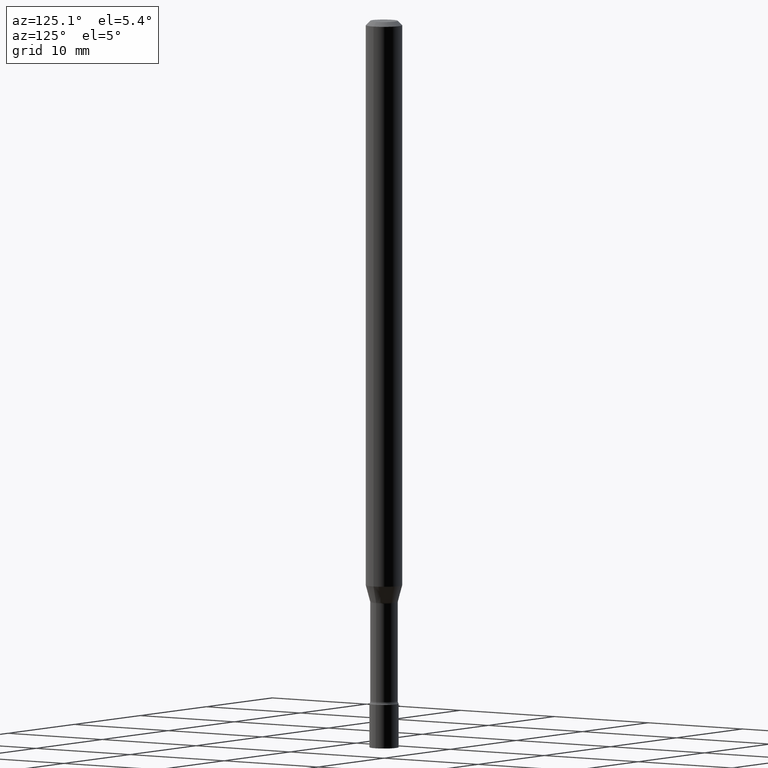
[diagram: clean part render]
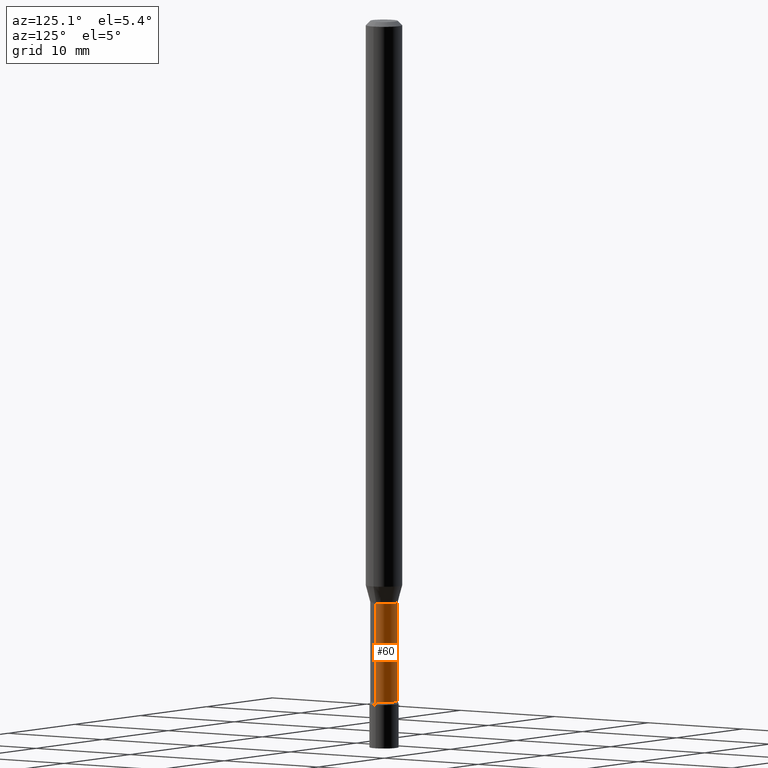
[diagram: same view with one face highlighted and labeled with its STEP entity id]
A machine part, auxiliary view. The second image highlights one B-rep face of the part: STEP entity #60.
In plain terms, the highlighted cylindrical surface (edge-blend (fillet) strip) has radius 1.1938 mm, axis along (-0, 0, 1).
Its self-contained STEP definition (entity closure, byte-faithful):
#13 = CARTESIAN_POINT ( 'NONE',  ( 4.895766893511868006E-29, -6.989857611264368100E-15, -2.001974787463811190 ) ) ;
#32 = VERTEX_POINT ( 'NONE', #374 ) ;
#53 = DIRECTION ( 'NONE',  ( 1.000000000000000000, -6.982962677686266711E-15, 4.876176775795936353E-29 ) ) ;
#58 = CARTESIAN_POINT ( 'NONE',  ( 0.04700000000000000705, -7.318056857115623393E-15, -2.001974787463811190 ) ) ;
#60 = ADVANCED_FACE ( 'NONE', ( #131 ), #205, .T. ) ;
#66 = CARTESIAN_POINT ( 'NONE',  ( 0.04699999999999999317, -3.281992458512545038E-16, 2.291803084624089879E-30 ) ) ;
#70 = CIRCLE ( 'NONE', #93, 0.04700000000000000705 ) ;
#92 = DIRECTION ( 'NONE',  ( -2.445468806185136877E-29, 3.491481338843145188E-15, 1.000000000000000000 ) ) ;
#93 = AXIS2_PLACEMENT_3D ( 'NONE', #13, #250, #212 ) ;
#113 = CARTESIAN_POINT ( 'NONE',  ( 0.04699999999999998623, -8.501757060083058435E-15, -2.341000000000000192 ) ) ;
#116 = VECTOR ( 'NONE', #92, 39.37007874015748143 ) ;
#121 = EDGE_CURVE ( 'NONE', #32, #489, #457, .T. ) ;
#123 = AXIS2_PLACEMENT_3D ( 'NONE', #130, #245, #291 ) ;
#130 = CARTESIAN_POINT ( 'NONE',  ( 5.724842475279404612E-29, -8.173557814231803142E-15, -2.341000000000000192 ) ) ;
#131 = FACE_OUTER_BOUND ( 'NONE', #175, .T. ) ;
#175 = EDGE_LOOP ( 'NONE', ( #434, #361, #300, #336 ) ) ;
#202 = CARTESIAN_POINT ( 'NONE',  ( 0.000000000000000000, 0.000000000000000000, 0.000000000000000000 ) ) ;
#205 = CYLINDRICAL_SURFACE ( 'NONE', #471, 0.04699999999999999317 ) ;
#212 = DIRECTION ( 'NONE',  ( 1.000000000000000000, -6.982962677686269866E-15, 0.000000000000000000 ) ) ;
#245 = DIRECTION ( 'NONE',  ( -2.445468806185136597E-29, 3.491481338843145583E-15, 1.000000000000000000 ) ) ;
#249 = CIRCLE ( 'NONE', #123, 0.04699999999999998623 ) ;
#250 = DIRECTION ( 'NONE',  ( -2.445468806185136597E-29, 3.491481338843145583E-15, 1.000000000000000000 ) ) ;
#291 = DIRECTION ( 'NONE',  ( 1.000000000000000000, -6.982962677686273021E-15, 0.000000000000000000 ) ) ;
#300 = ORIENTED_EDGE ( 'NONE', *, *, #508, .F. ) ;
#310 = EDGE_CURVE ( 'NONE', #397, #515, #387, .T. ) ;
#330 = CARTESIAN_POINT ( 'NONE',  ( -0.04699999999999999317, 3.339550858072470388E-16, -2.311899492419805370E-30 ) ) ;
#336 = ORIENTED_EDGE ( 'NONE', *, *, #310, .F. ) ;
#338 = DIRECTION ( 'NONE',  ( -2.445468806185136877E-29, 3.491481338843145188E-15, 1.000000000000000000 ) ) ;
#361 = ORIENTED_EDGE ( 'NONE', *, *, #121, .T. ) ;
#363 = VECTOR ( 'NONE', #338, 39.37007874015748143 ) ;
#374 = CARTESIAN_POINT ( 'NONE',  ( -0.04699999999999998623, -7.844656253412948961E-15, -2.341000000000000192 ) ) ;
#387 = LINE ( 'NONE', #66, #363 ) ;
#397 = VERTEX_POINT ( 'NONE', #113 ) ;
#419 = CARTESIAN_POINT ( 'NONE',  ( -0.04700000000000000705, -7.247752626940839815E-15, -2.001974787463811190 ) ) ;
#434 = ORIENTED_EDGE ( 'NONE', *, *, #499, .T. ) ;
#457 = LINE ( 'NONE', #330, #116 ) ;
#471 = AXIS2_PLACEMENT_3D ( 'NONE', #202, #503, #53 ) ;
#489 = VERTEX_POINT ( 'NONE', #419 ) ;
#499 = EDGE_CURVE ( 'NONE', #397, #32, #249, .T. ) ;
#503 = DIRECTION ( 'NONE',  ( -2.445468806185136597E-29, 3.491481338843145583E-15, 1.000000000000000000 ) ) ;
#508 = EDGE_CURVE ( 'NONE', #515, #489, #70, .T. ) ;
#515 = VERTEX_POINT ( 'NONE', #58 ) ;